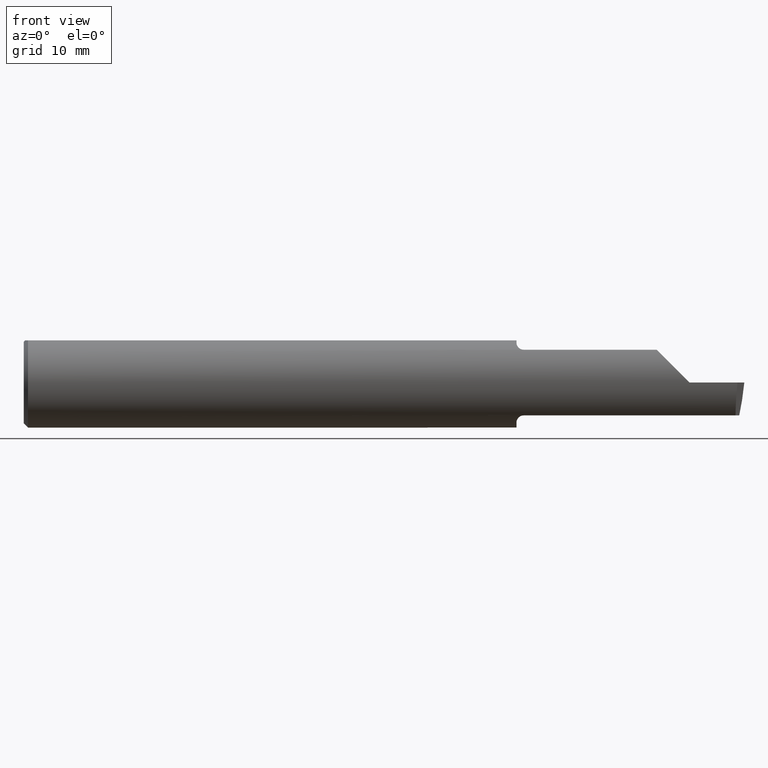
[diagram: clean part render]
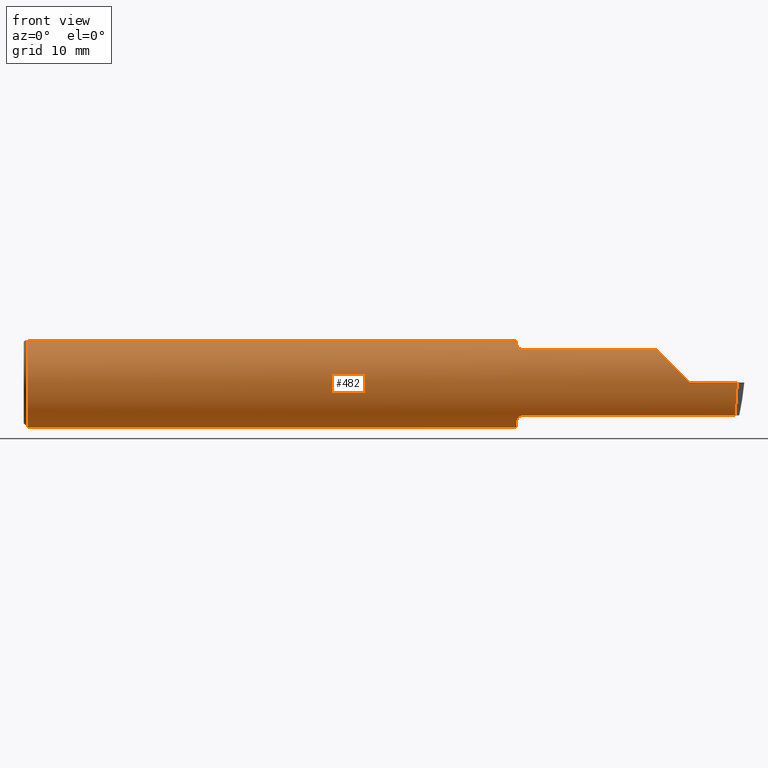
[diagram: same view with one face highlighted and labeled with its STEP entity id]
A machine part, front view. The second image highlights one B-rep face of the part: STEP entity #482.
In plain terms, the highlighted cylindrical surface (partial cylindrical patch) has radius 3.9649 mm, axis along (-1, -0, -0).
Its self-contained STEP definition (entity closure, byte-faithful):
#12 = CARTESIAN_POINT ( 'NONE',  ( 1.715689858637555076, -0.09810000000015267618, 0.1214232267730240983 ) ) ;
#30 = EDGE_CURVE ( 'NONE', #301, #188, #905, .T. ) ;
#31 = B_SPLINE_CURVE_WITH_KNOTS ( 'NONE', 3,
 ( #790, #150, #465, #870, #805, #697 ),
 .UNSPECIFIED., .F., .F.,
 ( 4, 2, 4 ),
 ( 0.0005677950938415356240, 0.0009390082881238557937, 0.001310221482406176072 ),
 .UNSPECIFIED. ) ;
#46 = CIRCLE ( 'NONE', #360, 0.1560999999999999888 ) ;
#52 = CARTESIAN_POINT ( 'NONE',  ( 0.01499999999999970281, 0.05497272050753906208, 0.1460999999999999521 ) ) ;
#55 = DIRECTION ( 'NONE',  ( 1.000000000000000000, 0.000000000000000000, 0.000000000000000000 ) ) ;
#90 = CARTESIAN_POINT ( 'NONE',  ( 1.720099978564144427, -0.1027955252679587234, 0.1174954537061367044 ) ) ;
#100 = ORIENTED_EDGE ( 'NONE', *, *, #113, .T. ) ;
#108 = CARTESIAN_POINT ( 'NONE',  ( 1.708566166913449313, 0.05497272050753906208, 0.1460999999999999521 ) ) ;
#113 = EDGE_CURVE ( 'NONE', #478, #175, #174, .T. ) ;
#119 = VERTEX_POINT ( 'NONE', #398 ) ;
#132 = DIRECTION ( 'NONE',  ( 1.000000000000000000, -0.000000000000000000, -0.000000000000000000 ) ) ;
#133 = CARTESIAN_POINT ( 'NONE',  ( 1.715689858637555076, -0.09810000000015267618, 0.1214232267730240983 ) ) ;
#136 = LINE ( 'NONE', #518, #431 ) ;
#137 = LINE ( 'NONE', #893, #633 ) ;
#141 = ORIENTED_EDGE ( 'NONE', *, *, #744, .T. ) ;
#150 = CARTESIAN_POINT ( 'NONE',  ( 1.713116638655315382, -0.09484218617339087998, -0.1240552729218293154 ) ) ;
#167 = CARTESIAN_POINT ( 'NONE',  ( 2.470488995690050871, -0.1560999999999999333, -0.04359511292662830023 ) ) ;
#170 = EDGE_CURVE ( 'NONE', #191, #777, #763, .T. ) ;
#174 = LINE ( 'NONE', #486, #423 ) ;
#175 = VERTEX_POINT ( 'NONE', #108 ) ;
#188 = VERTEX_POINT ( 'NONE', #448 ) ;
#191 = VERTEX_POINT ( 'NONE', #767 ) ;
#206 = DIRECTION ( 'NONE',  ( 0.000000000000000000, 0.000000000000000000, -1.000000000000000000 ) ) ;
#207 = CARTESIAN_POINT ( 'NONE',  ( 2.500000000000000000, 0.000000000000000000, 0.000000000000000000 ) ) ;
#217 = EDGE_CURVE ( 'NONE', #188, #856, #137, .T. ) ;
#237 = LINE ( 'NONE', #629, #958 ) ;
#258 = CARTESIAN_POINT ( 'NONE',  ( 1.717659542970777276, -0.1005937101760986940, 0.1194085136512956641 ) ) ;
#268 = VERTEX_POINT ( 'NONE', #495 ) ;
#274 = AXIS2_PLACEMENT_3D ( 'NONE', #207, #598, #685 ) ;
#289 = VERTEX_POINT ( 'NONE', #460 ) ;
#291 = CARTESIAN_POINT ( 'NONE',  ( 2.195457988604305744, -0.1071233944954127631, 0.1135420113956950999 ) ) ;
#298 = CARTESIAN_POINT ( 'NONE',  ( 2.308999999999999719, -0.1560999999999999888, -3.995833282175376183E-17 ) ) ;
#301 = VERTEX_POINT ( 'NONE', #12 ) ;
#304 = DIRECTION ( 'NONE',  ( 0.000000000000000000, 0.000000000000000000, -1.000000000000000000 ) ) ;
#309 = CARTESIAN_POINT ( 'NONE',  ( 2.500000000000000000, -0.1560999999999999888, -3.995833282175376183E-17 ) ) ;
#314 = CARTESIAN_POINT ( 'NONE',  ( 2.468058591229436605, -0.1071233944954127215, -0.1135420113956950999 ) ) ;
#316 = DIRECTION ( 'NONE',  ( 0.000000000000000000, 0.000000000000000000, -1.000000000000000000 ) ) ;
#335 = EDGE_CURVE ( 'NONE', #462, #907, #915, .T. ) ;
#336 = DIRECTION ( 'NONE',  ( 1.000000000000000000, 0.000000000000000000, 0.000000000000000000 ) ) ;
#360 = AXIS2_PLACEMENT_3D ( 'NONE', #698, #533, #304 ) ;
#374 = CARTESIAN_POINT ( 'NONE',  ( 1.708566166913449313, -0.07491136595310907142, -0.1369507110278707640 ) ) ;
#375 = ORIENTED_EDGE ( 'NONE', *, *, #170, .T. ) ;
#389 = EDGE_CURVE ( 'NONE', #268, #529, #31, .T. ) ;
#391 = ORIENTED_EDGE ( 'NONE', *, *, #982, .F. ) ;
#398 = CARTESIAN_POINT ( 'NONE',  ( 2.474686727619818338, -0.1560999999999999888, -1.997916641087688092E-17 ) ) ;
#408 =( BOUNDED_CURVE ( )  B_SPLINE_CURVE ( 3, ( #314, #931, #167, #804 ),
 .UNSPECIFIED., .F., .F. ) 
 B_SPLINE_CURVE_WITH_KNOTS ( ( 4, 4 ),
 ( 0.01647296458214366974, 0.8309504825764487679 ),
 .UNSPECIFIED. ) 
 CURVE ( )  GEOMETRIC_REPRESENTATION_ITEM ( )  RATIONAL_B_SPLINE_CURVE ( ( 1.000000000000000000, 0.9454786543792904618, 0.9454786543792904618, 1.000000000000000000 ) ) 
 REPRESENTATION_ITEM ( '' )  );
#412 = CIRCLE ( 'NONE', #984, 0.1560999999999999888 ) ;
#423 = VECTOR ( 'NONE', #336, 39.37007874015748143 ) ;
#431 = VECTOR ( 'NONE', #600, 39.37007874015748143 ) ;
#433 = EDGE_CURVE ( 'NONE', #907, #301, #683, .T. ) ;
#435 = CARTESIAN_POINT ( 'NONE',  ( 1.708566166913450202, -0.07917385093736307999, 0.1346191526874390143 ) ) ;
#448 = CARTESIAN_POINT ( 'NONE',  ( 1.733566166913449225, -0.1071233944954127631, 0.1135420113956951416 ) ) ;
#456 = CYLINDRICAL_SURFACE ( 'NONE', #274, 0.1560999999999999888 ) ;
#460 = CARTESIAN_POINT ( 'NONE',  ( 1.733566166913449225, -0.1071233944954127631, -0.1135420113956951416 ) ) ;
#462 = VERTEX_POINT ( 'NONE', #848 ) ;
#463 = ORIENTED_EDGE ( 'NONE', *, *, #335, .F. ) ;
#465 = CARTESIAN_POINT ( 'NONE',  ( 1.711387458576439480, -0.09117619566713480728, -0.1267941797443171703 ) ) ;
#478 = VERTEX_POINT ( 'NONE', #52 ) ;
#482 = ADVANCED_FACE ( 'NONE', ( #515 ), #456, .T. ) ;
#486 = CARTESIAN_POINT ( 'NONE',  ( 2.500000000000000000, 0.05497272050753906208, 0.1460999999999999521 ) ) ;
#489 = ORIENTED_EDGE ( 'NONE', *, *, #722, .T. ) ;
#493 = ORIENTED_EDGE ( 'NONE', *, *, #583, .T. ) ;
#495 = CARTESIAN_POINT ( 'NONE',  ( 1.715689858637501786, -0.09809999999999993725, -0.1214232267731343295 ) ) ;
#514 = DIRECTION ( 'NONE',  ( -1.000000000000000000, -0.000000000000000000, -0.000000000000000000 ) ) ;
#515 = FACE_OUTER_BOUND ( 'NONE', #803, .T. ) ;
#518 = CARTESIAN_POINT ( 'NONE',  ( 2.500000000000000000, -0.05497272050753906208, 0.1460999999999999521 ) ) ;
#529 = VERTEX_POINT ( 'NONE', #374 ) ;
#533 = DIRECTION ( 'NONE',  ( 1.000000000000000000, -0.000000000000000000, -0.000000000000000000 ) ) ;
#546 = EDGE_CURVE ( 'NONE', #529, #175, #412, .T. ) ;
#549 = CARTESIAN_POINT ( 'NONE',  ( 1.729769809386571211, -0.1071233944954128187, -0.1135420113956950861 ) ) ;
#551 = CARTESIAN_POINT ( 'NONE',  ( 2.195457988604305744, -0.1071233944954127631, 0.1135420113956950999 ) ) ;
#554 = DIRECTION ( 'NONE',  ( -1.000000000000000000, -0.000000000000000000, -0.000000000000000000 ) ) ;
#560 = CARTESIAN_POINT ( 'NONE',  ( 1.708566166913449313, -0.07491136595310907142, 0.1369507110278707640 ) ) ;
#583 = EDGE_CURVE ( 'NONE', #887, #856, #799, .T. ) ;
#598 = DIRECTION ( 'NONE',  ( -1.000000000000000000, -0.000000000000000000, -0.000000000000000000 ) ) ;
#600 = DIRECTION ( 'NONE',  ( -1.000000000000000000, -0.000000000000000000, -0.000000000000000000 ) ) ;
#611 = AXIS2_PLACEMENT_3D ( 'NONE', #927, #625, #316 ) ;
#620 = CARTESIAN_POINT ( 'NONE',  ( 2.265404887073371398, -0.1560999999999999888, 0.04359511292662814758 ) ) ;
#621 = ORIENTED_EDGE ( 'NONE', *, *, #974, .F. ) ;
#623 = ORIENTED_EDGE ( 'NONE', *, *, #433, .F. ) ;
#625 = DIRECTION ( 'NONE',  ( 1.000000000000000000, 0.000000000000000000, 0.000000000000000000 ) ) ;
#629 = CARTESIAN_POINT ( 'NONE',  ( 2.070749659618757121, -0.1071233944954128187, -0.1135420113956950861 ) ) ;
#632 = ORIENTED_EDGE ( 'NONE', *, *, #546, .F. ) ;
#633 = VECTOR ( 'NONE', #55, 39.37007874015748143 ) ;
#635 = CARTESIAN_POINT ( 'NONE',  ( 1.720091220512933061, -0.1027920633402272105, -0.1174986630695254997 ) ) ;
#650 = CARTESIAN_POINT ( 'NONE',  ( 1.733566166913449225, -0.1071233944954127631, 0.1135420113956951416 ) ) ;
#676 = AXIS2_PLACEMENT_3D ( 'NONE', #913, #132, #206 ) ;
#683 = B_SPLINE_CURVE_WITH_KNOTS ( 'NONE', 3,
 ( #832, #435, #827, #988, #748, #133 ),
 .UNSPECIFIED., .F., .F.,
 ( 4, 2, 4 ),
 ( 0.0001052866876005391367, 0.0004736434126142224032, 0.0008420001376279056832 ),
 .UNSPECIFIED. ) ;
#685 = DIRECTION ( 'NONE',  ( 0.000000000000000000, 0.000000000000000000, 1.000000000000000000 ) ) ;
#697 = CARTESIAN_POINT ( 'NONE',  ( 1.708566166913449313, -0.07491136595310907142, -0.1369507110278707640 ) ) ;
#698 = CARTESIAN_POINT ( 'NONE',  ( 0.01499999999999970281, 0.000000000000000000, 0.000000000000000000 ) ) ;
#715 = DIRECTION ( 'NONE',  ( 0.000000000000000000, 0.000000000000000000, -1.000000000000000000 ) ) ;
#722 = EDGE_CURVE ( 'NONE', #777, #478, #46, .T. ) ;
#732 = ORIENTED_EDGE ( 'NONE', *, *, #960, .T. ) ;
#736 = ORIENTED_EDGE ( 'NONE', *, *, #849, .T. ) ;
#744 = EDGE_CURVE ( 'NONE', #119, #887, #859, .T. ) ;
#748 = CARTESIAN_POINT ( 'NONE',  ( 1.713112673170739342, -0.09483716568914710154, 0.1240593290609891125 ) ) ;
#755 = VECTOR ( 'NONE', #514, 39.37007874015748143 ) ;
#763 = CIRCLE ( 'NONE', #676, 0.1560999999999999888 ) ;
#766 = CARTESIAN_POINT ( 'NONE',  ( 0.01499999999999970281, 0.000000000000000000, -0.1560999999999999888 ) ) ;
#767 = CARTESIAN_POINT ( 'NONE',  ( 0.01499999999999971148, -0.05497272050753906208, 0.1460999999999999521 ) ) ;
#768 = CARTESIAN_POINT ( 'NONE',  ( 1.708566166913449313, 0.000000000000000000, 0.000000000000000000 ) ) ;
#777 = VERTEX_POINT ( 'NONE', #766 ) ;
#783 = CARTESIAN_POINT ( 'NONE',  ( 1.715689858637501786, -0.09809999999999993725, -0.1214232267731343295 ) ) ;
#789 = CARTESIAN_POINT ( 'NONE',  ( 1.726154611570191344, -0.1060937515841783585, -0.1145262414630892484 ) ) ;
#790 = CARTESIAN_POINT ( 'NONE',  ( 1.715689858637501786, -0.09809999999999993725, -0.1214232267731343295 ) ) ;
#792 = CARTESIAN_POINT ( 'NONE',  ( 1.726132602705040542, -0.1060830713452040885, 0.1145359490758022930 ) ) ;
#799 =( BOUNDED_CURVE ( )  B_SPLINE_CURVE ( 3, ( #1011, #620, #855, #551 ),
 .UNSPECIFIED., .F., .F. ) 
 B_SPLINE_CURVE_WITH_KNOTS ( ( 4, 4 ),
 ( 4.712388980384689674, 5.526866498378995018 ),
 .UNSPECIFIED. ) 
 CURVE ( )  GEOMETRIC_REPRESENTATION_ITEM ( )  RATIONAL_B_SPLINE_CURVE ( ( 1.000000000000000000, 0.9454786543792904618, 0.9454786543792904618, 1.000000000000000000 ) ) 
 REPRESENTATION_ITEM ( '' )  );
#803 = EDGE_LOOP ( 'NONE', ( #391, #732, #141, #493, #838, #826, #623, #463, #736, #375, #489, #100, #632, #880, #621 ) ) ;
#804 = CARTESIAN_POINT ( 'NONE',  ( 2.474686727619818338, -0.1560999999999999888, -1.997916641087688092E-17 ) ) ;
#805 = CARTESIAN_POINT ( 'NONE',  ( 1.708566166913449313, -0.07917593072935799614, -0.1346180150514380003 ) ) ;
#806 = CARTESIAN_POINT ( 'NONE',  ( 1.729775537739325353, -0.1071233944954145673, 0.1135420113956934485 ) ) ;
#826 = ORIENTED_EDGE ( 'NONE', *, *, #30, .F. ) ;
#827 = CARTESIAN_POINT ( 'NONE',  ( 1.709089542370245907, -0.08327726429903253846, 0.1321163096139383042 ) ) ;
#832 = CARTESIAN_POINT ( 'NONE',  ( 1.708566166913449313, -0.07491136595310907142, 0.1369507110278707640 ) ) ;
#838 = ORIENTED_EDGE ( 'NONE', *, *, #217, .F. ) ;
#848 = CARTESIAN_POINT ( 'NONE',  ( 1.708566166913449313, -0.05497272050753906208, 0.1460999999999999521 ) ) ;
#849 = EDGE_CURVE ( 'NONE', #462, #191, #136, .T. ) ;
#855 = CARTESIAN_POINT ( 'NONE',  ( 2.225375070475613892, -0.1388330473378973640, 0.08362492952438650706 ) ) ;
#856 = VERTEX_POINT ( 'NONE', #291 ) ;
#859 = LINE ( 'NONE', #309, #755 ) ;
#867 = CARTESIAN_POINT ( 'NONE',  ( 1.715689858637555076, -0.09810000000015267618, 0.1214232267730240983 ) ) ;
#870 = CARTESIAN_POINT ( 'NONE',  ( 1.709089987525374665, -0.08328211420178525948, -0.1321134063123294566 ) ) ;
#880 = ORIENTED_EDGE ( 'NONE', *, *, #389, .F. ) ;
#881 = CARTESIAN_POINT ( 'NONE',  ( 1.733566166913449225, -0.1071233944954127631, -0.1135420113956951416 ) ) ;
#887 = VERTEX_POINT ( 'NONE', #298 ) ;
#893 = CARTESIAN_POINT ( 'NONE',  ( 2.070749659618757121, -0.1071233944954128187, 0.1135420113956950861 ) ) ;
#895 = VERTEX_POINT ( 'NONE', #908 ) ;
#905 = B_SPLINE_CURVE_WITH_KNOTS ( 'NONE', 3,
 ( #867, #258, #90, #792, #806, #650 ),
 .UNSPECIFIED., .F., .F.,
 ( 4, 2, 4 ),
 ( 0.0008420001376279056832, 0.001123526818422255222, 0.001405053499216604761 ),
 .UNSPECIFIED. ) ;
#907 = VERTEX_POINT ( 'NONE', #560 ) ;
#908 = CARTESIAN_POINT ( 'NONE',  ( 2.468058591229436605, -0.1071233944954127215, -0.1135420113956950999 ) ) ;
#913 = CARTESIAN_POINT ( 'NONE',  ( 0.01499999999999970281, 0.000000000000000000, 0.000000000000000000 ) ) ;
#915 = CIRCLE ( 'NONE', #611, 0.1560999999999999888 ) ;
#919 = B_SPLINE_CURVE_WITH_KNOTS ( 'NONE', 3,
 ( #881, #549, #789, #635, #944, #783 ),
 .UNSPECIFIED., .F., .F.,
 ( 4, 2, 4 ),
 ( 1.961995015679414803E-07, 0.0002839956466715517504, 0.0005677950938415356240 ),
 .UNSPECIFIED. ) ;
#927 = CARTESIAN_POINT ( 'NONE',  ( 1.708566166913449313, 0.000000000000000000, 0.000000000000000000 ) ) ;
#931 = CARTESIAN_POINT ( 'NONE',  ( 2.468152212319468131, -0.1388330473378972807, -0.08362492952438660421 ) ) ;
#944 = CARTESIAN_POINT ( 'NONE',  ( 1.717657133561021121, -0.1005906597535194125, -0.1194109781423450395 ) ) ;
#958 = VECTOR ( 'NONE', #554, 39.37007874015748143 ) ;
#960 = EDGE_CURVE ( 'NONE', #895, #119, #408, .T. ) ;
#974 = EDGE_CURVE ( 'NONE', #289, #268, #919, .T. ) ;
#982 = EDGE_CURVE ( 'NONE', #895, #289, #237, .T. ) ;
#984 = AXIS2_PLACEMENT_3D ( 'NONE', #768, #992, #715 ) ;
#988 = CARTESIAN_POINT ( 'NONE',  ( 1.711383118266403658, -0.09116459585395113308, 0.1268023599067567564 ) ) ;
#992 = DIRECTION ( 'NONE',  ( 1.000000000000000000, 0.000000000000000000, 0.000000000000000000 ) ) ;
#1011 = CARTESIAN_POINT ( 'NONE',  ( 2.308999999999999719, -0.1560999999999999888, -3.995833282175376183E-17 ) ) ;